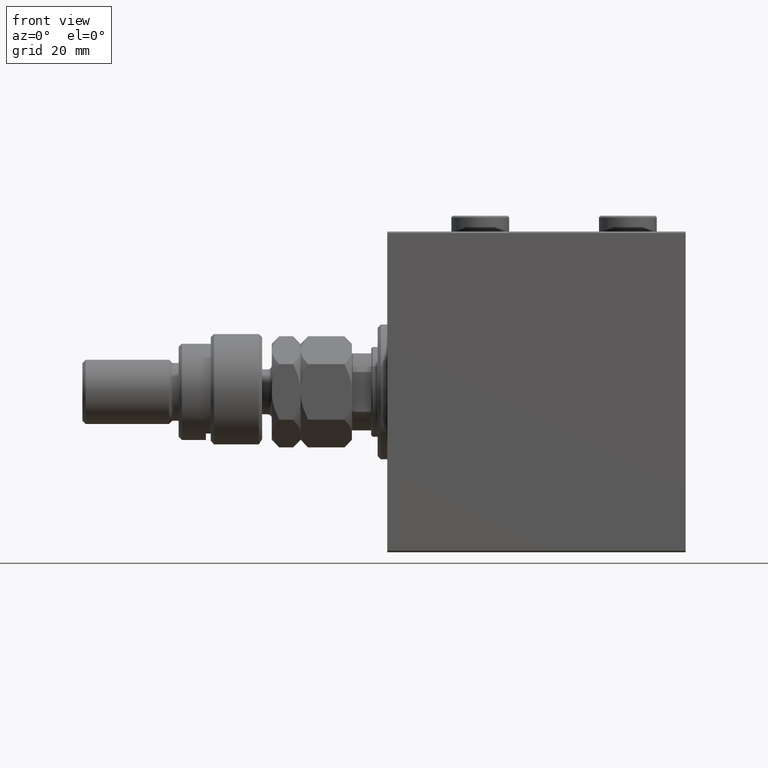
[diagram: clean part render]
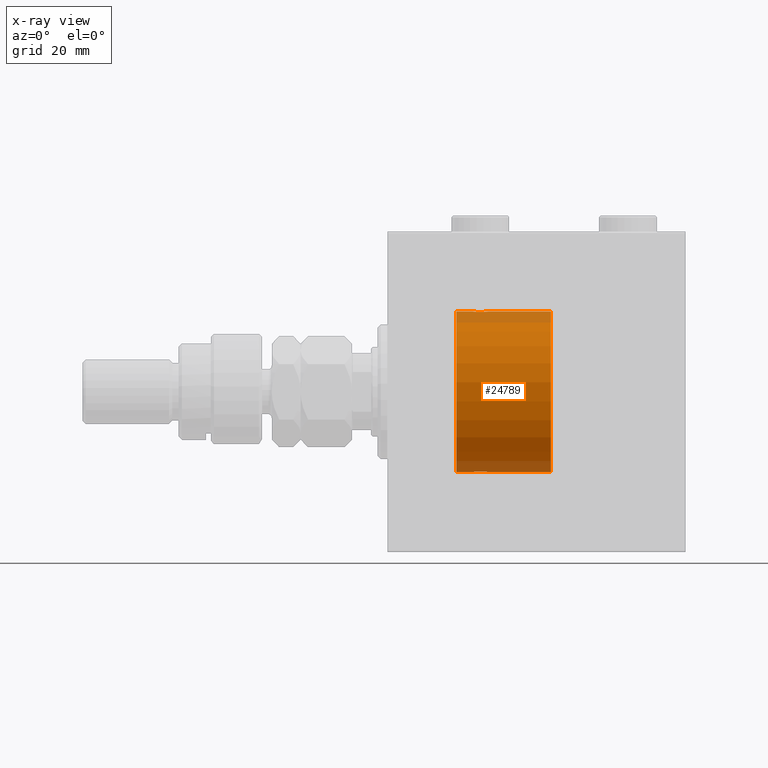
[diagram: x-ray — body ghosted, one internal face saturated and labeled with its STEP entity id]
A machine part, front view, then the same camera in x-ray: the body is ghosted and one INTERNAL B-rep face — a face not visible from any outside direction — is saturated and labeled: STEP entity #24789.
In plain terms, the highlighted cylindrical surface (partial cylindrical patch) has radius 25 mm, axis along (-1, -0, -0).
Its self-contained STEP definition (entity closure, byte-faithful):
#75 = CARTESIAN_POINT ( 'NONE',  ( 51.00000000000000711, 3.061616997868383043E-15, -25.00000000000000000 ) ) ;
#804 = CARTESIAN_POINT ( 'NONE',  ( 30.98749815834398902, -1.525407911884361312, -24.95379469572362652 ) ) ;
#929 = DIRECTION ( 'NONE',  ( -1.000000000000000000, -0.000000000000000000, -0.000000000000000000 ) ) ;
#1399 = DIRECTION ( 'NONE',  ( 0.000000000000000000, 0.000000000000000000, 1.000000000000000000 ) ) ;
#1418 = ORIENTED_EDGE ( 'NONE', *, *, #3935, .T. ) ;
#2021 = CARTESIAN_POINT ( 'NONE',  ( 28.19564339083698457, -2.372734907014171224, -24.88722742718433523 ) ) ;
#2060 = VERTEX_POINT ( 'NONE', #14016 ) ;
#2510 = CARTESIAN_POINT ( 'NONE',  ( 26.50000000000000000, -0.3305063766663763336, -25.00000000000000355 ) ) ;
#2554 = CARTESIAN_POINT ( 'NONE',  ( 27.34616663850662377, -1.881857718844722305, 24.92933960374833902 ) ) ;
#3286 = CARTESIAN_POINT ( 'NONE',  ( 30.98538033717095175, -1.528152964861311913, 24.95362559291378801 ) ) ;
#3393 = ORIENTED_EDGE ( 'NONE', *, *, #31959, .T. ) ;
#3519 = CARTESIAN_POINT ( 'NONE',  ( 28.83293504821939734, -2.499872792855088122, 24.87469871246082320 ) ) ;
#3603 = EDGE_CURVE ( 'NONE', #2060, #14528, #41844, .T. ) ;
#3935 = EDGE_CURVE ( 'NONE', #14528, #20164, #27058, .T. ) ;
#4414 = EDGE_CURVE ( 'NONE', #34741, #45973, #12426, .T. ) ;
#4505 = VERTEX_POINT ( 'NONE', #8606 ) ;
#4646 = DIRECTION ( 'NONE',  ( -1.000000000000000000, 0.000000000000000000, 0.000000000000000000 ) ) ;
#5210 = CARTESIAN_POINT ( 'NONE',  ( 29.80788342405805835, -2.371528299825741648, -24.88734287464370709 ) ) ;
#5224 = EDGE_CURVE ( 'NONE', #47622, #4505, #10776, .T. ) ;
#5929 = CARTESIAN_POINT ( 'NONE',  ( 29.64904390169096970, -2.419770561643905804, -24.88263927071751169 ) ) ;
#5947 = ORIENTED_EDGE ( 'NONE', *, *, #11586, .F. ) ;
#6217 = CARTESIAN_POINT ( 'NONE',  ( 27.11587617213529100, -1.651251241585106833, 24.94567559498349141 ) ) ;
#6462 = CARTESIAN_POINT ( 'NONE',  ( 27.88963203491136156, -2.245863995402906266, 24.89899750494197050 ) ) ;
#7413 = CARTESIAN_POINT ( 'NONE',  ( 31.16827641493956591, -1.255214705003181663, 24.96884293994578385 ) ) ;
#7585 = VERTEX_POINT ( 'NONE', #43659 ) ;
#8237 = CARTESIAN_POINT ( 'NONE',  ( 21.60000000000000142, 0.000000000000000000, 0.000000000000000000 ) ) ;
#8606 = CARTESIAN_POINT ( 'NONE',  ( 31.50000000000000000, 3.061616978460191625E-15, -25.00000000000000000 ) ) ;
#8872 = CARTESIAN_POINT ( 'NONE',  ( 31.50000000000000000, -0.1631750940176180942, -25.00000000000001066 ) ) ;
#10120 = CARTESIAN_POINT ( 'NONE',  ( 31.50000000000000000, -0.3305063766663745017, 25.00000000000000000 ) ) ;
#10776 = LINE ( 'NONE', #32799, #16070 ) ;
#11586 = EDGE_CURVE ( 'NONE', #47622, #7585, #42034, .T. ) ;
#11651 = DIRECTION ( 'NONE',  ( -1.000000000000000000, -0.000000000000000000, -0.000000000000000000 ) ) ;
#12426 = B_SPLINE_CURVE_WITH_KNOTS ( 'NONE', 3,
 ( #47045, #13541, #46554, #28455, #31399, #24794, #46320, #39698, #6217, #2554, #12814, #42648, #6462, #48005, #43625, #40200, #3519, #18186, #21603, #22086, #47777, #36764, #44108, #28940, #36288, #21843, #3286, #7413, #29652, #17700, #10120, #47285 ),
 .UNSPECIFIED., .F., .F.,
 ( 4, 2, 2, 2, 2, 2, 2, 2, 2, 2, 2, 2, 2, 2, 2, 4 ),
 ( 0.007821024441662279003, 0.008309723826317887141, 0.008798423210973493544, 0.009287122595629099947, 0.009775821980284708085, 0.01026452136494031622, 0.01075322074959592263, 0.01124192013425152903, 0.01173061951890713717, 0.01221931890356274530, 0.01270801828821835171, 0.01319671767287395811, 0.01368541705752956625, 0.01417411644218517439, 0.01466281582684078079, 0.01564021459615199533 ),
 .UNSPECIFIED. ) ;
#12814 = CARTESIAN_POINT ( 'NONE',  ( 27.47463817756919369, -1.987446652080268938, 24.92104239223420592 ) ) ;
#13541 = CARTESIAN_POINT ( 'NONE',  ( 26.50000000000000711, -0.1631750940176201758, 25.00000000000000711 ) ) ;
#13738 = CARTESIAN_POINT ( 'NONE',  ( 27.01461966282905180, -1.528152964861308138, -24.95362559291378801 ) ) ;
#14016 = CARTESIAN_POINT ( 'NONE',  ( 26.50000000000000355, -4.113702575029848227E-15, -25.00000000000000000 ) ) ;
#14528 = VERTEX_POINT ( 'NONE', #45739 ) ;
#15961 = CARTESIAN_POINT ( 'NONE',  ( 30.65383336149337978, -1.881857718844712091, -24.92933960374833546 ) ) ;
#16070 = VECTOR ( 'NONE', #30074, 1000.000000000000000 ) ;
#17171 = CARTESIAN_POINT ( 'NONE',  ( 26.83172358506043054, -1.255214705003178555, -24.96884293994578030 ) ) ;
#17228 = DIRECTION ( 'NONE',  ( -1.000000000000000000, -0.000000000000000000, -0.000000000000000000 ) ) ;
#17533 = B_SPLINE_CURVE_WITH_KNOTS ( 'NONE', 3,
 ( #45297, #8872, #23770, #26720, #19384, #34293, #38681, #804, #34537, #15961, #45780, #19870, #34780, #5210, #5929, #28161, #42846, #47484, #43580, #36482, #2021, #32077, #31596, #21078, #39172, #36249, #13738, #17171, #47000, #24992, #2510, #35999 ),
 .UNSPECIFIED., .F., .F.,
 ( 4, 2, 2, 2, 2, 2, 2, 2, 2, 2, 2, 2, 2, 2, 2, 4 ),
 ( 0.007821024441662299820, 0.008309723826317907958, 0.008798423210973517830, 0.009287122595629122498, 0.009775821980284727167, 0.01026452136494033184, 0.01075322074959593650, 0.01124192013425154291, 0.01173061951890714757, 0.01221931890356275051, 0.01270801828821835691, 0.01319671767287396158, 0.01368541705752956625, 0.01417411644218517092, 0.01466281582684077732, 0.01564021459615199186 ),
 .UNSPECIFIED. ) ;
#17700 = CARTESIAN_POINT ( 'NONE',  ( 31.43349355239748988, -0.6588655613945869627, 24.99312727339970053 ) ) ;
#18186 = CARTESIAN_POINT ( 'NONE',  ( 29.16323589638543012, -2.500125740978199840, 24.87467329022545570 ) ) ;
#18424 = ORIENTED_EDGE ( 'NONE', *, *, #4414, .T. ) ;
#19384 = CARTESIAN_POINT ( 'NONE',  ( 31.37215969408607563, -0.8058335233485418581, -24.98746277938382931 ) ) ;
#19870 = CARTESIAN_POINT ( 'NONE',  ( 30.25383195424502958, -2.169003991399867104, -24.90589728951138326 ) ) ;
#20164 = VERTEX_POINT ( 'NONE', #42384 ) ;
#20181 = AXIS2_PLACEMENT_3D ( 'NONE', #33755, #4646, #30785 ) ;
#20502 = AXIS2_PLACEMENT_3D ( 'NONE', #20652, #17228, #32138 ) ;
#20652 = CARTESIAN_POINT ( 'NONE',  ( 51.00000000000000711, 0.000000000000000000, 0.000000000000000000 ) ) ;
#21078 = CARTESIAN_POINT ( 'NONE',  ( 27.47743225659810307, -1.989585286700244149, -24.92087098724765681 ) ) ;
#21603 = CARTESIAN_POINT ( 'NONE',  ( 29.32596570039460104, -2.484007091859769645, 24.87630842367763506 ) ) ;
#21843 = CARTESIAN_POINT ( 'NONE',  ( 30.88185954148646317, -1.653834020452937814, 24.94550385189585029 ) ) ;
#22086 = CARTESIAN_POINT ( 'NONE',  ( 29.64560666148632606, -2.420689345803764603, 24.88254961038873958 ) ) ;
#22791 = DIRECTION ( 'NONE',  ( -1.000000000000000000, -0.000000000000000000, -0.000000000000000000 ) ) ;
#23770 = CARTESIAN_POINT ( 'NONE',  ( 31.48417840057656747, -0.3254210271412200650, -24.99840249400844527 ) ) ;
#24306 = EDGE_CURVE ( 'NONE', #34741, #20164, #39287, .T. ) ;
#24789 = ADVANCED_FACE ( 'NONE', ( #27973 ), #39462, .F. ) ;
#24794 = CARTESIAN_POINT ( 'NONE',  ( 26.75239748980449050, -1.106703319666885843, 24.97594585958023572 ) ) ;
#24992 = CARTESIAN_POINT ( 'NONE',  ( 26.56650644760252789, -0.6588655613945878509, -24.99312727339970763 ) ) ;
#25111 = VECTOR ( 'NONE', #11651, 1000.000000000000000 ) ;
#26367 = ORIENTED_EDGE ( 'NONE', *, *, #45528, .F. ) ;
#26720 = CARTESIAN_POINT ( 'NONE',  ( 31.42014909220930363, -0.6480119923854200659, -24.99212088949392196 ) ) ;
#27058 = CIRCLE ( 'NONE', #45041, 25.00000000000000000 ) ;
#27300 = DIRECTION ( 'NONE',  ( -1.000000000000000000, 0.000000000000000000, 0.000000000000000000 ) ) ;
#27973 = FACE_OUTER_BOUND ( 'NONE', #39468, .T. ) ;
#28161 = CARTESIAN_POINT ( 'NONE',  ( 29.32947680114268252, -2.483544361357266084, -24.87635491893501083 ) ) ;
#28455 = CARTESIAN_POINT ( 'NONE',  ( 26.57985090779070703, -0.6480119923854240627, 24.99212088949390420 ) ) ;
#28592 = CARTESIAN_POINT ( 'NONE',  ( 31.50000000000000000, 3.516655301135341131E-16, 25.00000000000000000 ) ) ;
#28940 = CARTESIAN_POINT ( 'NONE',  ( 30.52256774340190759, -1.989585286700245925, 24.92087098724766747 ) ) ;
#29652 = CARTESIAN_POINT ( 'NONE',  ( 31.24606379094067066, -1.109818057797416380, 24.97580694515541921 ) ) ;
#30074 = DIRECTION ( 'NONE',  ( -1.000000000000000000, -0.000000000000000000, -0.000000000000000000 ) ) ;
#30785 = DIRECTION ( 'NONE',  ( 0.000000000000000000, 0.000000000000000000, 1.000000000000000000 ) ) ;
#30927 = VECTOR ( 'NONE', #22791, 1000.000000000000000 ) ;
#31399 = CARTESIAN_POINT ( 'NONE',  ( 26.62784030591392437, -0.8058335233485480753, 24.98746277938383287 ) ) ;
#31596 = CARTESIAN_POINT ( 'NONE',  ( 27.74915976075945068, -2.170728182476717283, -24.90574631553725027 ) ) ;
#31959 = EDGE_CURVE ( 'NONE', #4505, #2060, #17533, .T. ) ;
#32077 = CARTESIAN_POINT ( 'NONE',  ( 27.89276154161591137, -2.247417070759893498, -24.89885693081945917 ) ) ;
#32138 = DIRECTION ( 'NONE',  ( 0.000000000000000000, 0.000000000000000000, 1.000000000000000000 ) ) ;
#32276 = ORIENTED_EDGE ( 'NONE', *, *, #5224, .T. ) ;
#32474 = LINE ( 'NONE', #37101, #25111 ) ;
#32799 = CARTESIAN_POINT ( 'NONE',  ( 51.00000000000000711, 3.061616997868383043E-15, -25.00000000000000000 ) ) ;
#33755 = CARTESIAN_POINT ( 'NONE',  ( 51.00000000000000711, 0.000000000000000000, 0.000000000000000000 ) ) ;
#34293 = CARTESIAN_POINT ( 'NONE',  ( 31.24760251019550950, -1.106703319666878071, -24.97594585958023572 ) ) ;
#34537 = CARTESIAN_POINT ( 'NONE',  ( 30.88412382786470900, -1.651251241585097063, -24.94567559498348075 ) ) ;
#34741 = VERTEX_POINT ( 'NONE', #40098 ) ;
#34780 = CARTESIAN_POINT ( 'NONE',  ( 30.11036796508864910, -2.245863995402895164, -24.89899750494197406 ) ) ;
#35426 = ORIENTED_EDGE ( 'NONE', *, *, #24306, .F. ) ;
#35664 = ORIENTED_EDGE ( 'NONE', *, *, #3603, .T. ) ;
#35831 = CARTESIAN_POINT ( 'NONE',  ( 51.00000000000000711, 3.061616997868383043E-15, -25.00000000000000000 ) ) ;
#35999 = CARTESIAN_POINT ( 'NONE',  ( 26.50000000000000355, -4.113702575029848227E-15, -25.00000000000000000 ) ) ;
#36249 = CARTESIAN_POINT ( 'NONE',  ( 27.11814045851354038, -1.653834020452936038, -24.94550385189584674 ) ) ;
#36288 = CARTESIAN_POINT ( 'NONE',  ( 30.65121133559112820, -1.884161199660618236, 24.92916496727982434 ) ) ;
#36482 = CARTESIAN_POINT ( 'NONE',  ( 28.35439333851368460, -2.420689345803756165, -24.88254961038873958 ) ) ;
#36764 = CARTESIAN_POINT ( 'NONE',  ( 30.10723845838410639, -2.247417070759899715, 24.89885693081946272 ) ) ;
#37101 = CARTESIAN_POINT ( 'NONE',  ( 51.00000000000000711, 0.000000000000000000, 25.00000000000000000 ) ) ;
#38681 = CARTESIAN_POINT ( 'NONE',  ( 31.17011290280925451, -1.252049606094333578, -24.96900299967627745 ) ) ;
#39172 = CARTESIAN_POINT ( 'NONE',  ( 27.34878866440888245, -1.884161199660614017, -24.92916496727982434 ) ) ;
#39287 = LINE ( 'NONE', #42236, #47835 ) ;
#39462 = CYLINDRICAL_SURFACE ( 'NONE', #20502, 25.00000000000000000 ) ;
#39468 = EDGE_LOOP ( 'NONE', ( #5947, #32276, #3393, #35664, #1418, #35426, #18424, #26367 ) ) ;
#39698 = CARTESIAN_POINT ( 'NONE',  ( 27.01250184165601453, -1.525407911884368639, 24.95379469572361941 ) ) ;
#40098 = CARTESIAN_POINT ( 'NONE',  ( 26.50000000000000355, -1.940558383798427991E-23, 25.00000000000000000 ) ) ;
#40200 = CARTESIAN_POINT ( 'NONE',  ( 28.67052319885731038, -2.483544361357276298, 24.87635491893501438 ) ) ;
#41844 = LINE ( 'NONE', #75, #30927 ) ;
#42034 = CIRCLE ( 'NONE', #20181, 25.00000000000000000 ) ;
#42236 = CARTESIAN_POINT ( 'NONE',  ( 51.00000000000000711, 0.000000000000000000, 25.00000000000000000 ) ) ;
#42384 = CARTESIAN_POINT ( 'NONE',  ( 21.60000000000000142, 0.000000000000000000, 25.00000000000000000 ) ) ;
#42648 = CARTESIAN_POINT ( 'NONE',  ( 27.74616804575498108, -2.169003991399877318, 24.90589728951138326 ) ) ;
#42846 = CARTESIAN_POINT ( 'NONE',  ( 29.16706495178060621, -2.499872792855077464, -24.87469871246082320 ) ) ;
#43580 = CARTESIAN_POINT ( 'NONE',  ( 28.67403429960540606, -2.484007091859761207, -24.87630842367763506 ) ) ;
#43625 = CARTESIAN_POINT ( 'NONE',  ( 28.35095609830903740, -2.419770561643915130, 24.88263927071751169 ) ) ;
#43659 = CARTESIAN_POINT ( 'NONE',  ( 51.00000000000000711, 0.000000000000000000, 25.00000000000000000 ) ) ;
#44108 = CARTESIAN_POINT ( 'NONE',  ( 30.25084023924055643, -2.170728182476722612, 24.90574631553725027 ) ) ;
#45041 = AXIS2_PLACEMENT_3D ( 'NONE', #8237, #27300, #1399 ) ;
#45297 = CARTESIAN_POINT ( 'NONE',  ( 31.50000000000000000, 3.061616978460191625E-15, -25.00000000000000000 ) ) ;
#45528 = EDGE_CURVE ( 'NONE', #7585, #45973, #32474, .T. ) ;
#45739 = CARTESIAN_POINT ( 'NONE',  ( 21.60000000000000142, 3.061616997868383043E-15, -25.00000000000000000 ) ) ;
#45780 = CARTESIAN_POINT ( 'NONE',  ( 30.52536182243081342, -1.987446652080259391, -24.92104239223420592 ) ) ;
#45973 = VERTEX_POINT ( 'NONE', #28592 ) ;
#46320 = CARTESIAN_POINT ( 'NONE',  ( 26.82988709719075970, -1.252049606094339573, 24.96900299967627390 ) ) ;
#46554 = CARTESIAN_POINT ( 'NONE',  ( 26.51582159942343608, -0.3254210271412235067, 24.99840249400844883 ) ) ;
#47000 = CARTESIAN_POINT ( 'NONE',  ( 26.75393620905933290, -1.109818057797416158, -24.97580694515542277 ) ) ;
#47045 = CARTESIAN_POINT ( 'NONE',  ( 26.50000000000000355, -1.940558383798427991E-23, 25.00000000000000000 ) ) ;
#47285 = CARTESIAN_POINT ( 'NONE',  ( 31.50000000000000000, 3.516655301135341131E-16, 25.00000000000000000 ) ) ;
#47484 = CARTESIAN_POINT ( 'NONE',  ( 28.83676410361457343, -2.500125740978191846, -24.87467329022545925 ) ) ;
#47622 = VERTEX_POINT ( 'NONE', #35831 ) ;
#47777 = CARTESIAN_POINT ( 'NONE',  ( 29.80435660916302254, -2.372734907014178773, 24.88722742718433878 ) ) ;
#47835 = VECTOR ( 'NONE', #929, 1000.000000000000000 ) ;
#48005 = CARTESIAN_POINT ( 'NONE',  ( 28.19211657594193809, -2.371528299825754083, 24.88734287464370709 ) ) ;